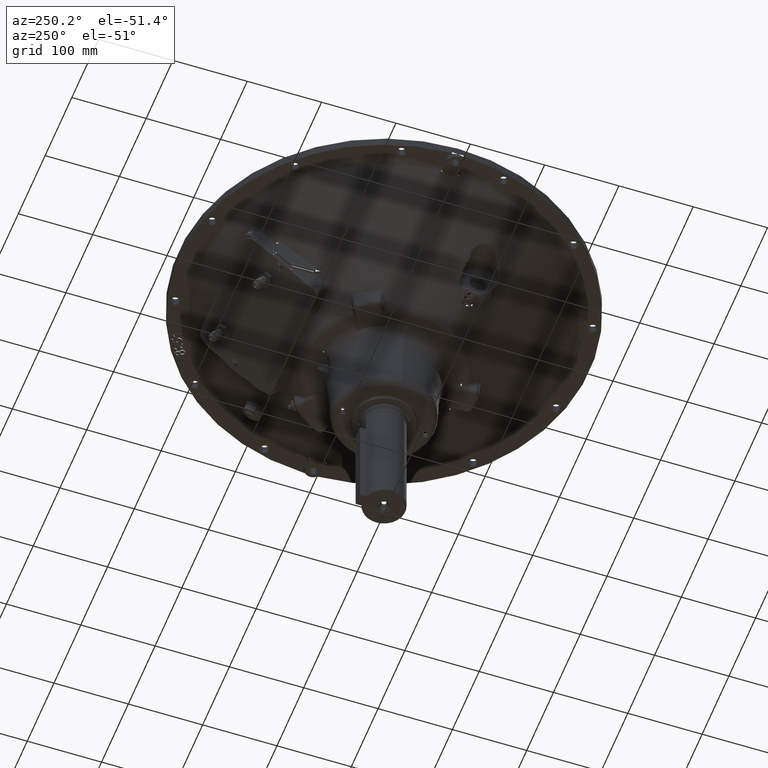
[diagram: clean part render]
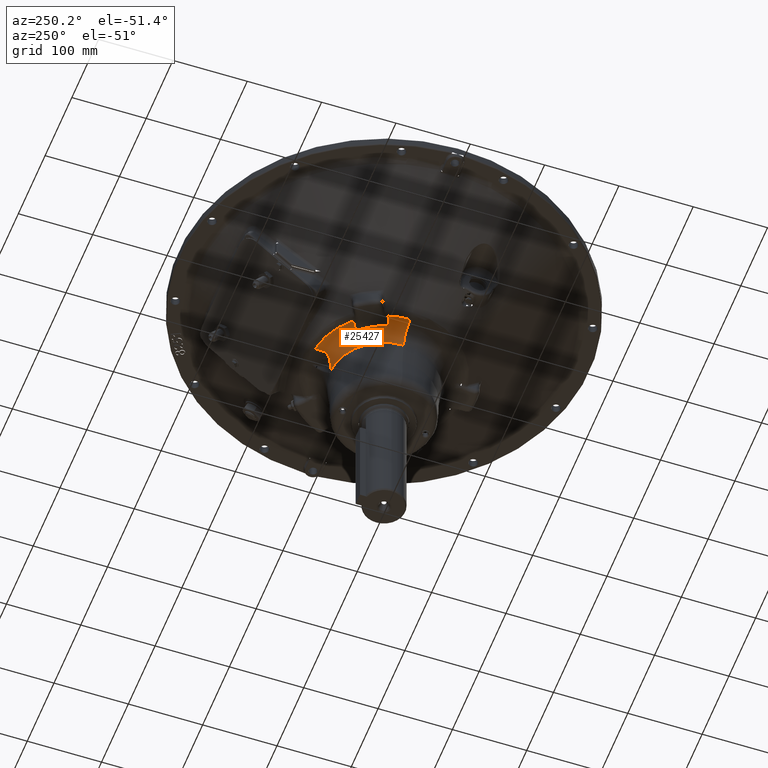
[diagram: same view with one face highlighted and labeled with its STEP entity id]
A machine part, auxiliary view. The second image highlights one B-rep face of the part: STEP entity #25427.
In plain terms, the highlighted toroidal blend (fillet) surface has major radius 98.2177 mm and minor (blend) radius 25.4 mm.
Its self-contained STEP definition (entity closure, byte-faithful):
#7046 = EDGE_CURVE ( 'NONE', #41655, #55673, #38772, .T. ) ;
#7094 = EDGE_CURVE ( 'NONE', #41655, #41670, #28905, .T. ) ;
#7193 = EDGE_CURVE ( 'NONE', #41727, #41729, #28923, .T. ) ;
#7198 = EDGE_CURVE ( 'NONE', #41670, #41727, #38887, .T. ) ;
#7207 = EDGE_CURVE ( 'NONE', #41731, #41729, #38894, .T. ) ;
#7219 = EDGE_CURVE ( 'NONE', #41731, #41733, #28927, .T. ) ;
#7236 = EDGE_CURVE ( 'NONE', #41749, #41747, #28930, .T. ) ;
#7246 = EDGE_CURVE ( 'NONE', #41747, #55882, #28933, .T. ) ;
#7298 = EDGE_CURVE ( 'NONE', #41733, #41749, #28944, .T. ) ;
#10433 = CARTESIAN_POINT ( 'NONE',  ( 0.0000000000000000000, 0.0000000000000000000, -136.5249999999999200 ) ) ;
#10445 = DIRECTION ( 'NONE',  ( -0.0000000000000000000, -0.0000000000000000000, 1.000000000000000000 ) ) ;
#10446 = DIRECTION ( 'NONE',  ( 1.000000000000000000, 0.0000000000000000000, 0.0000000000000000000 ) ) ;
#10546 = CARTESIAN_POINT ( 'NONE',  ( -93.96553286650210200, 28.58654949255370100, -136.5249999999999200 ) ) ;
#10550 = CARTESIAN_POINT ( 'NONE',  ( -92.93106988901603000, 28.02694752402070200, -136.5249999999999500 ) ) ;
#10551 = CARTESIAN_POINT ( 'NONE',  ( -91.90703128690447000, 27.47615207199029200, -136.6030720597605600 ) ) ;
#10552 = CARTESIAN_POINT ( 'NONE',  ( -89.87891410460969200, 26.39153078466453600, -136.9089998523140000 ) ) ;
#10553 = CARTESIAN_POINT ( 'NONE',  ( -88.87483776870705300, 25.85770725164854500, -137.1368735117641200 ) ) ;
#10554 = CARTESIAN_POINT ( 'NONE',  ( -86.88692906742927800, 24.80723933602443400, -137.7444475711823500 ) ) ;
#10555 = CARTESIAN_POINT ( 'NONE',  ( -85.89796079099845400, 24.28793847764762500, -138.1271042725101700 ) ) ;
#10556 = CARTESIAN_POINT ( 'NONE',  ( -83.98228947863906100, 23.28863486972840100, -139.0335937181085900 ) ) ;
#10557 = CARTESIAN_POINT ( 'NONE',  ( -83.05221105671223800, 22.80681271349211100, -139.5575531296642000 ) ) ;
#10558 = CARTESIAN_POINT ( 'NONE',  ( -82.15048650861504600, 22.34302633273545500, -140.1535714285714100 ) ) ;
#10904 = AXIS2_PLACEMENT_3D ( 'NONE', #10433, #10445, #10446 ) ;
#10934 = AXIS2_PLACEMENT_3D ( 'NONE', #32529, #32559, #32560 ) ;
#10938 = AXIS2_PLACEMENT_3D ( 'NONE', #32570, #32591, #32593 ) ;
#11821 = AXIS2_PLACEMENT_3D ( 'NONE', #21345, #21376, #21384 ) ;
#20178 = CARTESIAN_POINT ( 'NONE',  ( -98.21767752688875000, 1.202819644029912200E-014, -136.5249999999999500 ) ) ;
#20186 = CARTESIAN_POINT ( 'NONE',  ( -73.02499999999997700, 8.942983250773544600E-015, -158.6863275827594500 ) ) ;
#20387 = CARTESIAN_POINT ( 'NONE',  ( -0.5287057182408666500, 73.02308604313772400, -158.6863275827594500 ) ) ;
#21345 = CARTESIAN_POINT ( 'NONE',  ( 0.0000000000000000000, 0.0000000000000000000, -161.9249999999999500 ) ) ;
#21376 = DIRECTION ( 'NONE',  ( -0.0000000000000000000, -0.0000000000000000000, 1.000000000000000000 ) ) ;
#21384 = DIRECTION ( 'NONE',  ( 1.000000000000000000, 0.0000000000000000000, 0.0000000000000000000 ) ) ;
#25427 = ADVANCED_FACE ( 'NONE', ( #30306 ), #30321, .F. ) ;
#25845 = EDGE_CURVE ( 'NONE', #55882, #55681, #27360, .T. ) ;
#25846 = EDGE_CURVE ( 'NONE', #55673, #55681, #27364, .T. ) ;
#27360 = CIRCLE ( 'NONE', #45896, 73.02499999999997700 ) ;
#27364 = CIRCLE ( 'NONE', #45898, 25.40000000000002000 ) ;
#28905 = B_SPLINE_CURVE_WITH_KNOTS ( 'NONE', 3,
 ( #10546, #10550, #10551, #10552, #10553, #10554, #10555, #10556, #10557, #10558 ),
 .UNSPECIFIED., .F., .F.,
 ( 4, 2, 2, 2, 4 ),
 ( 0.0000000000000000000, 0.003477889414699885600, 0.006955778829399771200, 0.01043366824409965700, 0.01391155765879954200 ),
 .UNSPECIFIED. ) ;
#28923 = B_SPLINE_CURVE_WITH_KNOTS ( 'NONE', 3,
 ( #32511, #32532, #32535, #32537, #32539, #32541, #32543, #32545, #32548, #32550 ),
 .UNSPECIFIED., .F., .F.,
 ( 4, 2, 2, 2, 4 ),
 ( 9.813077866773594800E-018, 0.003512157518823004200, 0.007024315037646013600, 0.01053647255646902300, 0.01404863007529203400 ),
 .UNSPECIFIED. ) ;
#28927 = B_SPLINE_CURVE_WITH_KNOTS ( 'NONE', 3,
 ( #32622, #32650, #32651, #32652, #32655, #32658, #32661, #32663 ),
 .UNSPECIFIED., .F., .F.,
 ( 4, 2, 2, 4 ),
 ( -3.270549467559376100E-005, 0.005361337650197465200, 0.008058359222633995600, 0.01075538079507052500 ),
 .UNSPECIFIED. ) ;
#28930 = B_SPLINE_CURVE_WITH_KNOTS ( 'NONE', 3,
 ( #32711, #32717, #32718, #32719, #32720, #32721, #32723, #32725 ),
 .UNSPECIFIED., .F., .F.,
 ( 4, 2, 2, 4 ),
 ( 0.0000000000000000000, 0.002079064105961390500, 0.003118596158942085600, 0.004158128211922781100 ),
 .UNSPECIFIED. ) ;
#28933 = B_SPLINE_CURVE_WITH_KNOTS ( 'NONE', 3,
 ( #32733, #32750, #32752, #32753, #32755, #32757, #32759, #32760, #32761, #32762, #32763, #32764, #32765, #32766, #32767, #32768, #32769, #32770, #32771, #32772, #32774, #32775, #32777, #32779, #32781, #32783 ),
 .UNSPECIFIED., .F., .F.,
 ( 4, 2, 2, 2, 2, 2, 2, 2, 2, 2, 2, 2, 4 ),
 ( 0.0000000000000000000, 0.003083979268160371700, 0.006167958536320743300, 0.007709948170400900300, 0.009251937804481058200, 0.01233591707264137200, 0.01541989634080168600, 0.01850387560896199800, 0.02004586524304215900, 0.02158785487712231600, 0.02312984451120246900, 0.02390083932824254800, 0.02467183414528262300 ),
 .UNSPECIFIED. ) ;
#28944 = B_SPLINE_CURVE_WITH_KNOTS ( 'NONE', 3,
 ( #32979, #32984, #32986, #32988 ),
 .UNSPECIFIED., .F., .F.,
 ( 4, 4 ),
 ( 0.0000000000000000000, 0.001242590618158286100 ),
 .UNSPECIFIED. ) ;
#30306 = FACE_OUTER_BOUND ( 'NONE', #39718, .T. ) ;
#30321 = TOROIDAL_SURFACE ( 'NONE', #11821, 98.21767752688875000, 25.40000000000002000 ) ;
#32511 = CARTESIAN_POINT ( 'NONE',  ( -60.42487165588092100, 59.97289508334387900, -140.1535714285714100 ) ) ;
#32529 = CARTESIAN_POINT ( 'NONE',  ( 0.0000000000000000000, 0.0000000000000000000, -140.1535714285713500 ) ) ;
#32532 = CARTESIAN_POINT ( 'NONE',  ( -61.27738471759400300, 60.52191825883372900, -139.5575531296642300 ) ) ;
#32535 = CARTESIAN_POINT ( 'NONE',  ( -62.15969415596423900, 61.08647872161594700, -139.0335937181085600 ) ) ;
#32537 = CARTESIAN_POINT ( 'NONE',  ( -63.98295212269544400, 62.24584693946069800, -138.1271042725101400 ) ) ;
#32539 = CARTESIAN_POINT ( 'NONE',  ( -64.92716399647223100, 62.84266816119826900, -137.7444475711823500 ) ) ;
#32541 = CARTESIAN_POINT ( 'NONE',  ( -66.83085024790204900, 64.03901363909693600, -137.1368735117640900 ) ) ;
#32543 = CARTESIAN_POINT ( 'NONE',  ( -67.79519315658321000, 64.64165748681944000, -136.9089998523140300 ) ) ;
#32545 = CARTESIAN_POINT ( 'NONE',  ( -69.74856133604008300, 65.85574784487553800, -136.6030720597605600 ) ) ;
#32548 = CARTESIAN_POINT ( 'NONE',  ( -70.73758349084313600, 66.46719356274488200, -136.5249999999999200 ) ) ;
#32550 = CARTESIAN_POINT ( 'NONE',  ( -71.73944450034349500, 67.08326379625577800, -136.5249999999999200 ) ) ;
#32559 = DIRECTION ( 'NONE',  ( 0.0000000000000000000, 0.0000000000000000000, -1.000000000000000000 ) ) ;
#32560 = DIRECTION ( 'NONE',  ( -1.000000000000000000, 0.0000000000000000000, 0.0000000000000000000 ) ) ;
#32570 = CARTESIAN_POINT ( 'NONE',  ( 0.0000000000000000000, 0.0000000000000000000, -136.5249999999999200 ) ) ;
#32591 = DIRECTION ( 'NONE',  ( -0.0000000000000000000, -0.0000000000000000000, 1.000000000000000000 ) ) ;
#32593 = DIRECTION ( 'NONE',  ( 1.000000000000000000, 0.0000000000000000000, 0.0000000000000000000 ) ) ;
#32622 = CARTESIAN_POINT ( 'NONE',  ( -12.70000000000000100, 97.39313209244225800, -136.5249999999999200 ) ) ;
#32650 = CARTESIAN_POINT ( 'NONE',  ( -12.87631419540607400, 95.60378298517510100, -136.5249999999998400 ) ) ;
#32651 = CARTESIAN_POINT ( 'NONE',  ( -13.05713521537209100, 93.81755313738861400, -136.7069989889232000 ) ) ;
#32652 = CARTESIAN_POINT ( 'NONE',  ( -13.37745956884278100, 91.19494377646132900, -137.2400435006779600 ) ) ;
#32655 = CARTESIAN_POINT ( 'NONE',  ( -13.49225147609015700, 90.33203188741219900, -137.4606024801069300 ) ) ;
#32658 = CARTESIAN_POINT ( 'NONE',  ( -13.75319340791901500, 88.63908501624966600, -137.9806190861984300 ) ) ;
#32661 = CARTESIAN_POINT ( 'NONE',  ( -13.89809059051945500, 87.80750571998213200, -138.2806599125804900 ) ) ;
#32663 = CARTESIAN_POINT ( 'NONE',  ( -14.08016513019443000, 86.99308167982724200, -138.6161714341260700 ) ) ;
#32711 = CARTESIAN_POINT ( 'NONE',  ( -14.30500157268427900, 85.87435196534603700, -139.1080289789501000 ) ) ;
#32717 = CARTESIAN_POINT ( 'NONE',  ( -14.41981816269853700, 85.24496392360129000, -139.4024570825933200 ) ) ;
#32718 = CARTESIAN_POINT ( 'NONE',  ( -14.46347845922022300, 84.63089746030279100, -139.7242681869299200 ) ) ;
#32719 = CARTESIAN_POINT ( 'NONE',  ( -14.41359573197965100, 83.73532037664819000, -140.2525964568932000 ) ) ;
#32720 = CARTESIAN_POINT ( 'NONE',  ( -14.37757070104704800, 83.44105996683411800, -140.4363285018364400 ) ) ;
#32721 = CARTESIAN_POINT ( 'NONE',  ( -14.26254241957285600, 82.86168145826864900, -140.8201323644953800 ) ) ;
#32723 = CARTESIAN_POINT ( 'NONE',  ( -14.18409889540683700, 82.58003030166636900, -141.0179734726097000 ) ) ;
#32725 = CARTESIAN_POINT ( 'NONE',  ( -14.08410980706820800, 82.30857372195308100, -141.2200894723712000 ) ) ;
#32733 = CARTESIAN_POINT ( 'NONE',  ( -14.08410980706820800, 82.30857372195308100, -141.2200894723712000 ) ) ;
#32750 = CARTESIAN_POINT ( 'NONE',  ( -13.78743550221043500, 81.50314391532492700, -141.8197811459947400 ) ) ;
#32752 = CARTESIAN_POINT ( 'NONE',  ( -13.42737768619118400, 80.77095222947683300, -142.4525529356708900 ) ) ;
#32753 = CARTESIAN_POINT ( 'NONE',  ( -12.61589556233101600, 79.42381559936595200, -143.7772966914384900 ) ) ;
#32755 = CARTESIAN_POINT ( 'NONE',  ( -12.16409627686059000, 78.80915067192104600, -144.4693131907157800 ) ) ;
#32757 = CARTESIAN_POINT ( 'NONE',  ( -11.43207095532938000, 77.96274654926297400, -145.5483365718289100 ) ) ;
#32759 = CARTESIAN_POINT ( 'NONE',  ( -11.17799254555461300, 77.69243973415436200, -145.9161632198284300 ) ) ;
#32760 = CARTESIAN_POINT ( 'NONE',  ( -10.65976729975509800, 77.18191177412481400, -146.6557240083089100 ) ) ;
#32761 = CARTESIAN_POINT ( 'NONE',  ( -10.39526905380141200, 76.94111308978264700, -147.0280207834309500 ) ) ;
#32762 = CARTESIAN_POINT ( 'NONE',  ( -9.587819932001988100, 76.25758000869798500, -148.1520583229264800 ) ) ;
#32763 = CARTESIAN_POINT ( 'NONE',  ( -9.031080606949597500, 75.85347861291441500, -148.9109666090448600 ) ) ;
#32764 = CARTESIAN_POINT ( 'NONE',  ( -7.887525001803799900, 75.13182381436406800, -150.4454506643999400 ) ) ;
#32765 = CARTESIAN_POINT ( 'NONE',  ( -7.300731063371182800, 74.81437013509864200, -151.2210884420005900 ) ) ;
#32766 = CARTESIAN_POINT ( 'NONE',  ( -6.098189466045895700, 74.25601625637403900, -152.7853419130147500 ) ) ;
#32767 = CARTESIAN_POINT ( 'NONE',  ( -5.482814919282753300, 74.01514915130182700, -153.5742528142267200 ) ) ;
#32768 = CARTESIAN_POINT ( 'NONE',  ( -4.531419218460697200, 73.70703079114086600, -154.7604623879712200 ) ) ;
#32769 = CARTESIAN_POINT ( 'NONE',  ( -4.209470500434633800, 73.61325451652751900, -155.1563001145700000 ) ) ;
#32770 = CARTESIAN_POINT ( 'NONE',  ( -3.555807008371812300, 73.44412691659887600, -155.9404007500863300 ) ) ;
#32771 = CARTESIAN_POINT ( 'NONE',  ( -3.223887662005199100, 73.36859827012979500, -156.3295061467549100 ) ) ;
#32772 = CARTESIAN_POINT ( 'NONE',  ( -2.539115025428779300, 73.23545395607135300, -157.0920213114530100 ) ) ;
#32774 = CARTESIAN_POINT ( 'NONE',  ( -2.187879536605759500, 73.17774037449551400, -157.4668830027680700 ) ) ;
#32775 = CARTESIAN_POINT ( 'NONE',  ( -1.617157093862287500, 73.10575421985262800, -157.9920201378034800 ) ) ;
#32777 = CARTESIAN_POINT ( 'NONE',  ( -1.418204069822038600, 73.08411058427405700, -158.1615824060358500 ) ) ;
#32779 = CARTESIAN_POINT ( 'NONE',  ( -0.9982204231503099000, 73.04774455308395900, -158.4629503548577200 ) ) ;
#32781 = CARTESIAN_POINT ( 'NONE',  ( -0.7775553984633640800, 73.03277965814956500, -158.5969109891739800 ) ) ;
#32783 = CARTESIAN_POINT ( 'NONE',  ( -0.5287057182408666500, 73.02308604313772400, -158.6863275827594500 ) ) ;
#32979 = CARTESIAN_POINT ( 'NONE',  ( -14.08016513019443000, 86.99308167982724200, -138.6161714341260700 ) ) ;
#32984 = CARTESIAN_POINT ( 'NONE',  ( -14.16405303517242600, 86.61784895034034500, -138.7707529516116300 ) ) ;
#32986 = CARTESIAN_POINT ( 'NONE',  ( -14.23744661961840000, 86.24466673967405900, -138.9347955052822400 ) ) ;
#32988 = CARTESIAN_POINT ( 'NONE',  ( -14.30500157268427900, 85.87435196534603700, -139.1080289789501000 ) ) ;
#38772 = CIRCLE ( 'NONE', #10904, 98.21767752688875000 ) ;
#38887 = CIRCLE ( 'NONE', #10934, 85.13467718449075500 ) ;
#38894 = CIRCLE ( 'NONE', #10938, 98.21767752688875000 ) ;
#39718 = EDGE_LOOP ( 'NONE', ( #45108, #45110, #45112, #45114, #45115, #45116, #45117, #45119, #45121, #45122, #45124 ) ) ;
#41655 = VERTEX_POINT ( 'NONE', #50799 ) ;
#41670 = VERTEX_POINT ( 'NONE', #50804 ) ;
#41727 = VERTEX_POINT ( 'NONE', #50825 ) ;
#41729 = VERTEX_POINT ( 'NONE', #50826 ) ;
#41731 = VERTEX_POINT ( 'NONE', #50827 ) ;
#41733 = VERTEX_POINT ( 'NONE', #50828 ) ;
#41747 = VERTEX_POINT ( 'NONE', #50834 ) ;
#41749 = VERTEX_POINT ( 'NONE', #50835 ) ;
#45108 = ORIENTED_EDGE ( 'NONE', *, *, #25846, .F. ) ;
#45110 = ORIENTED_EDGE ( 'NONE', *, *, #7046, .F. ) ;
#45112 = ORIENTED_EDGE ( 'NONE', *, *, #7094, .T. ) ;
#45114 = ORIENTED_EDGE ( 'NONE', *, *, #7198, .T. ) ;
#45115 = ORIENTED_EDGE ( 'NONE', *, *, #7193, .T. ) ;
#45116 = ORIENTED_EDGE ( 'NONE', *, *, #7207, .F. ) ;
#45117 = ORIENTED_EDGE ( 'NONE', *, *, #7219, .T. ) ;
#45119 = ORIENTED_EDGE ( 'NONE', *, *, #7298, .T. ) ;
#45121 = ORIENTED_EDGE ( 'NONE', *, *, #7236, .T. ) ;
#45122 = ORIENTED_EDGE ( 'NONE', *, *, #7246, .T. ) ;
#45124 = ORIENTED_EDGE ( 'NONE', *, *, #25845, .T. ) ;
#45896 = AXIS2_PLACEMENT_3D ( 'NONE', #47874, #47876, #47877 ) ;
#45898 = AXIS2_PLACEMENT_3D ( 'NONE', #47871, #47879, #47880 ) ;
#47871 = CARTESIAN_POINT ( 'NONE',  ( -98.21767752688875000, 1.202819644029912200E-014, -161.9249999999999500 ) ) ;
#47874 = CARTESIAN_POINT ( 'NONE',  ( 0.0000000000000000000, 0.0000000000000000000, -158.6863275827594500 ) ) ;
#47876 = DIRECTION ( 'NONE',  ( -0.0000000000000000000, -0.0000000000000000000, 1.000000000000000000 ) ) ;
#47877 = DIRECTION ( 'NONE',  ( 1.000000000000000000, 0.0000000000000000000, 0.0000000000000000000 ) ) ;
#47879 = DIRECTION ( 'NONE',  ( 1.224646799147353200E-016, 1.000000000000000000, 0.0000000000000000000 ) ) ;
#47880 = DIRECTION ( 'NONE',  ( -1.000000000000000000, 1.224646799147353500E-016, 0.0000000000000000000 ) ) ;
#50799 = CARTESIAN_POINT ( 'NONE',  ( -93.96553286650210200, 28.58654949255370100, -136.5249999999999200 ) ) ;
#50804 = CARTESIAN_POINT ( 'NONE',  ( -82.15048650861504600, 22.34302633273545500, -140.1535714285714100 ) ) ;
#50825 = CARTESIAN_POINT ( 'NONE',  ( -60.42487165588092100, 59.97289508334387900, -140.1535714285714100 ) ) ;
#50826 = CARTESIAN_POINT ( 'NONE',  ( -71.73944450034349500, 67.08326379625577800, -136.5249999999999200 ) ) ;
#50827 = CARTESIAN_POINT ( 'NONE',  ( -12.70000000000000100, 97.39313209244225800, -136.5249999999999200 ) ) ;
#50828 = CARTESIAN_POINT ( 'NONE',  ( -14.08016513019443000, 86.99308167982724200, -138.6161714341260700 ) ) ;
#50834 = CARTESIAN_POINT ( 'NONE',  ( -14.08410980706820800, 82.30857372195308100, -141.2200894723712000 ) ) ;
#50835 = CARTESIAN_POINT ( 'NONE',  ( -14.30500157268427900, 85.87435196534603700, -139.1080289789501000 ) ) ;
#55673 = VERTEX_POINT ( 'NONE', #20178 ) ;
#55681 = VERTEX_POINT ( 'NONE', #20186 ) ;
#55882 = VERTEX_POINT ( 'NONE', #20387 ) ;